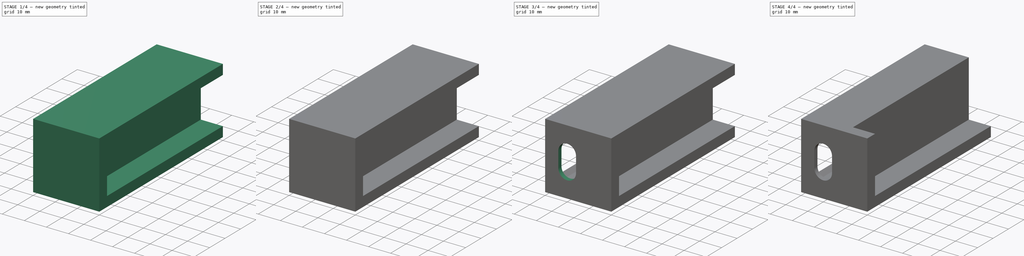
[diagram: build sequence overview — one tinted view per stage of 4, left to right]
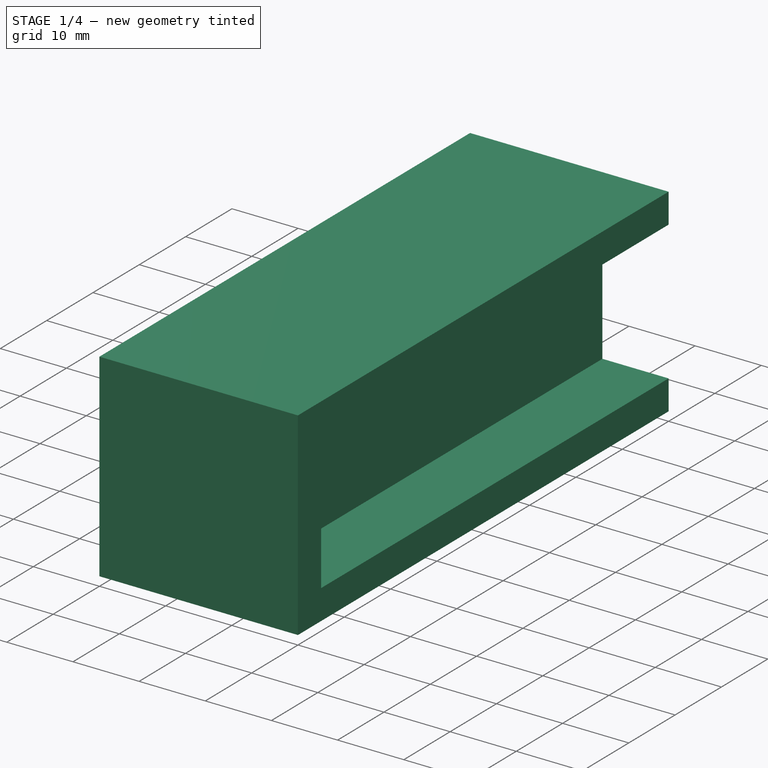
[diagram: stage 1 of 4 — iso view after this stage's code; geometry added in this stage tinted green]
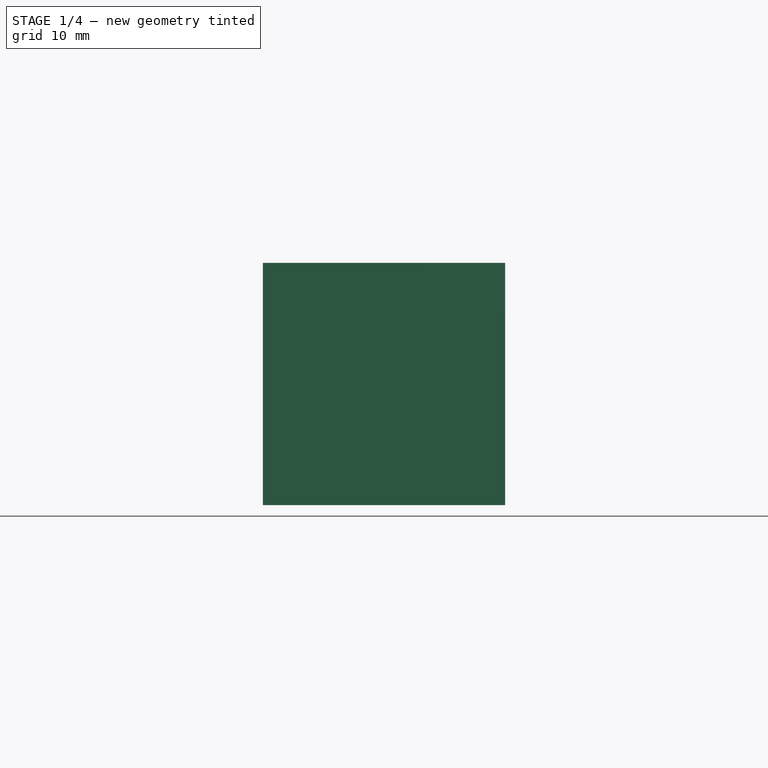
[diagram: stage 1 of 4 — front view after this stage's code; geometry added in this stage tinted green]
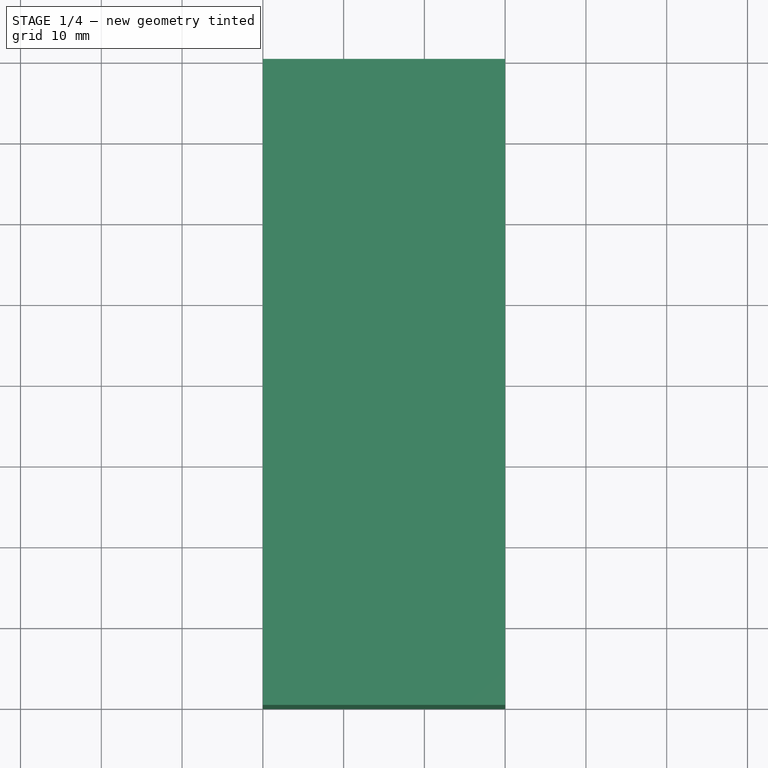
[diagram: stage 1 of 4 — top view after this stage's code; geometry added in this stage tinted green]
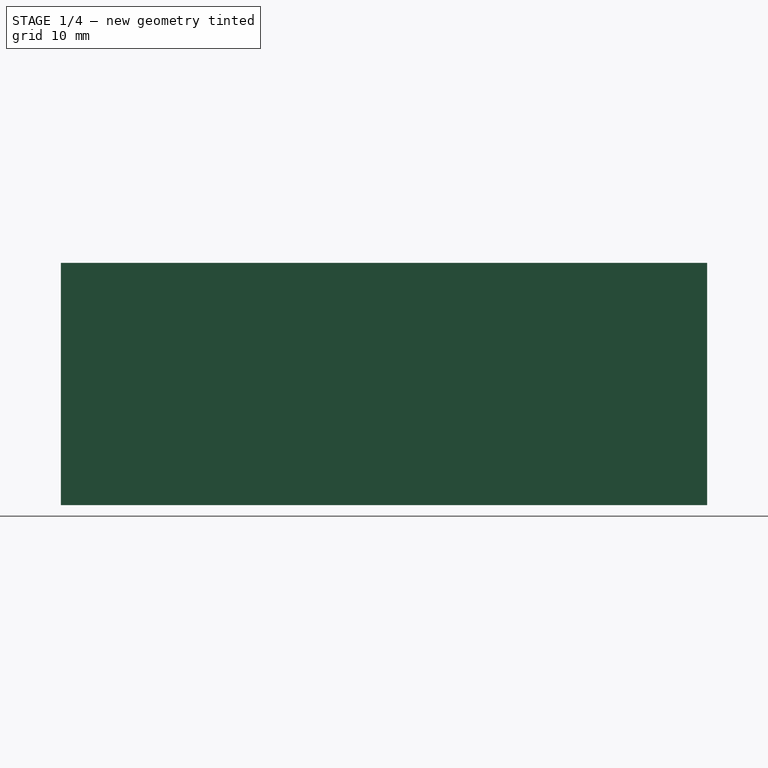
[diagram: stage 1 of 4 — right view after this stage's code; geometry added in this stage tinted green]
FCSTD DOCUMENT  (FreeCAD 0.21R33771 (Git))
Label: Footer2
License: All rights reserved
LicenseURL: http://en.wikipedia.org/wiki/All_rights_reserved
objects: Sketcher::SketchObject×10, PartDesign::Pocket×8, PartDesign::Pad×2, PartDesign::Fillet×2, PartDesign::AdditiveBox×1, PartDesign::Body×1
note: 37 computed .brp shape members not serialized (recipe doc carries the construction recipe); baked Part::Feature solids carry a one-line shape summary decoded from their .brp

FEATURE [PartDesign::AdditiveBox] Box
  AttacherType = Attacher::AttachEngine3D
  Height = 30
  Length = 30
  Width = 80
FEATURE [Sketcher::SketchObject] Sketch
  FullyConstrained = true
  MapMode = 5
  Placement = pos=(30,0,0) rot=(0.57735,0.57735,0.57735;2.0944rad)
  Support = -> [Box]
  sketch-geometry (4):
    g0: LineSegment StartX=80 StartY=4.5 StartZ=0 EndX=5 EndY=4.5 EndZ=0
    g1: LineSegment StartX=5 StartY=4.5 StartZ=0 EndX=5 EndY=25.5 EndZ=0
    g2: LineSegment StartX=5 StartY=25.5 StartZ=0 EndX=80 EndY=25.5 EndZ=0
    g3: LineSegment StartX=80 StartY=25.5 StartZ=0 EndX=80 EndY=4.5 EndZ=0
  constraints (12):
    c: Coincident(g0,g1)
    c: Coincident(g1,g2)
    c: Coincident(g2,g3)
    c: Coincident(g3,g0)
    c: Horizontal(g0)
    c: Horizontal(g2)
    c: Vertical(g1)
    c: Vertical(g3)
    c: DistanceX(g-1,g0) = 5
    c: DistanceY(g1,g1) = 21
    c: DistanceY(g-1,g0) = 4.5
    c: DistanceX(g2,g2) = 75
FEATURE [PartDesign::Pocket] Pocket
  BaseFeature = -> Box
  Direction = (-1,0,0)
  Length = 10
  Length2 = 5
  Profile = -> Sketch
  ReferenceAxis = -> Sketch [N_Axis]
  Type = 0
FEATURE [Sketcher::SketchObject] Sketch001
  FullyConstrained = true
  MapMode = 5
  Placement = pos=(0,0,0) rot=(0.57735,0.57735,0.57735;2.0944rad)
  Support = -> [YZ_Plane]
  sketch-geometry (4):
    g0: LineSegment StartX=78 StartY=26 StartZ=0 EndX=2 EndY=26 EndZ=0
    g1: LineSegment StartX=2 StartY=26 StartZ=0 EndX=2 EndY=4 EndZ=0
    g2: LineSegment StartX=2 StartY=4 StartZ=0 EndX=78 EndY=4 EndZ=0
    g3: LineSegment StartX=78 StartY=4 StartZ=0 EndX=78 EndY=26 EndZ=0
  constraints (12):
    c: Coincident(g0,g1)
    c: Coincident(g1,g2)
    c: Coincident(g2,g3)
    c: Coincident(g3,g0)
    c: Horizontal(g0)
    c: Horizontal(g2)
    c: Vertical(g1)
    c: Vertical(g3)
    c: DistanceX(g0,g0) = 76
    c: DistanceY(g1,g1) = 22
    c: DistanceX(g-1,g1) = 2
    c: DistanceY(g-1,g1) = 4
FEATURE [PartDesign::Pocket] Pocket001
  BaseFeature = -> Pocket
  Direction = (-1,2e-16,-3e-16)
  Length = 18
  Length2 = 5
  Profile = -> Sketch001
  ReferenceAxis = -> Sketch001 [N_Axis]
  Reversed = true
  Type = 0
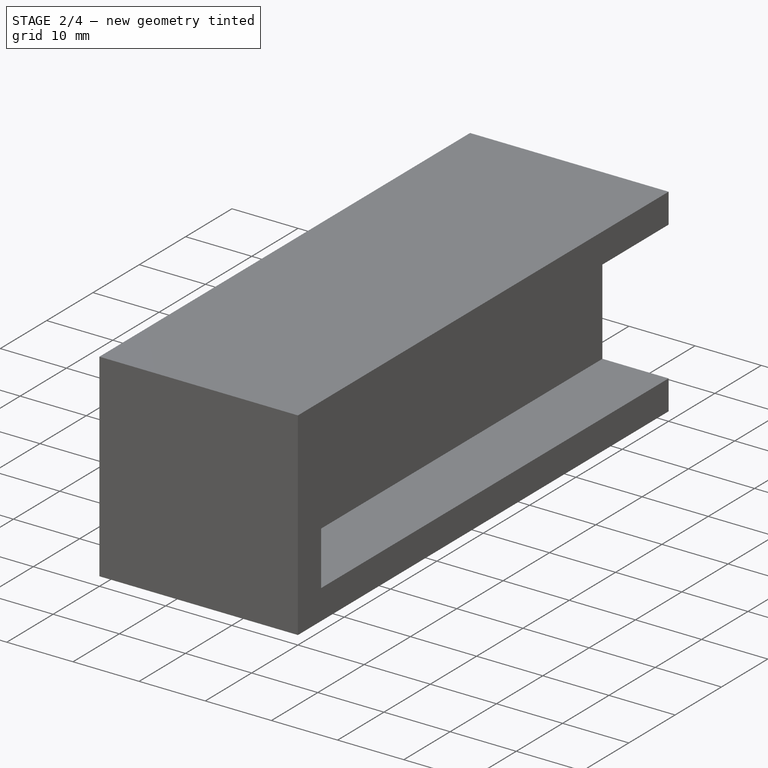
[diagram: stage 2 of 4 — iso view after this stage's code; geometry added in this stage tinted green]
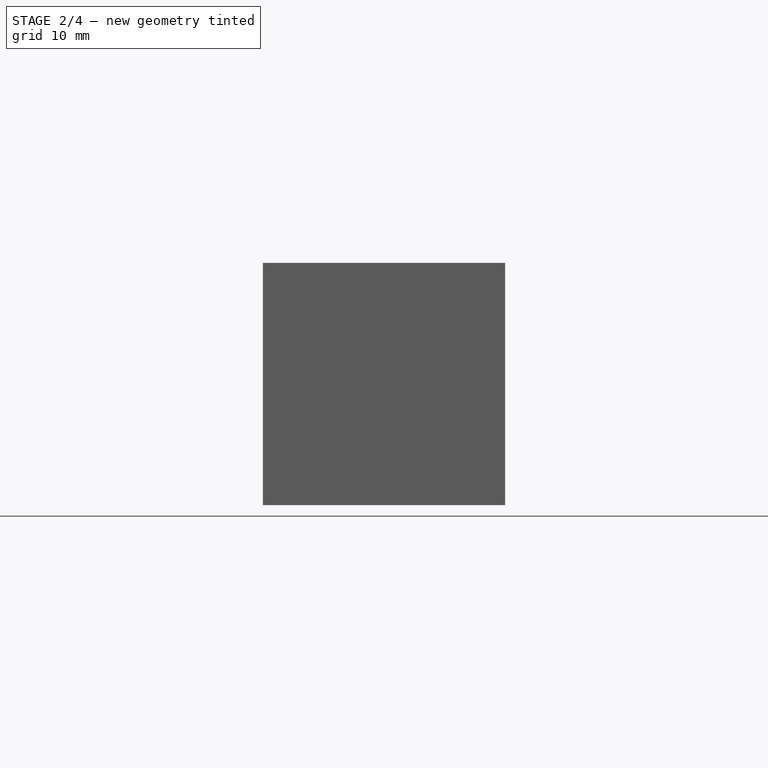
[diagram: stage 2 of 4 — front view after this stage's code; geometry added in this stage tinted green]
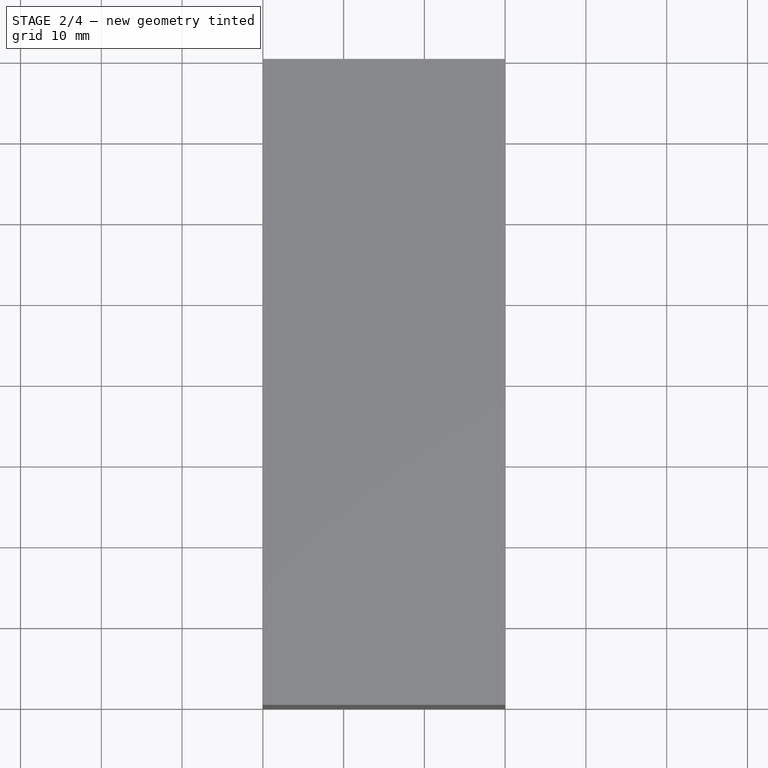
[diagram: stage 2 of 4 — top view after this stage's code; geometry added in this stage tinted green]
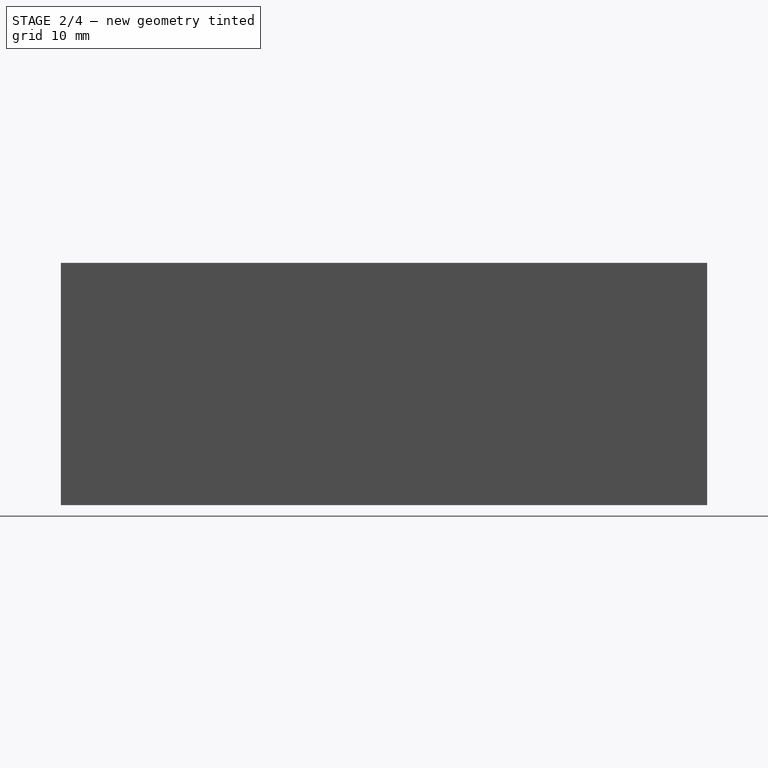
[diagram: stage 2 of 4 — right view after this stage's code; geometry added in this stage tinted green]
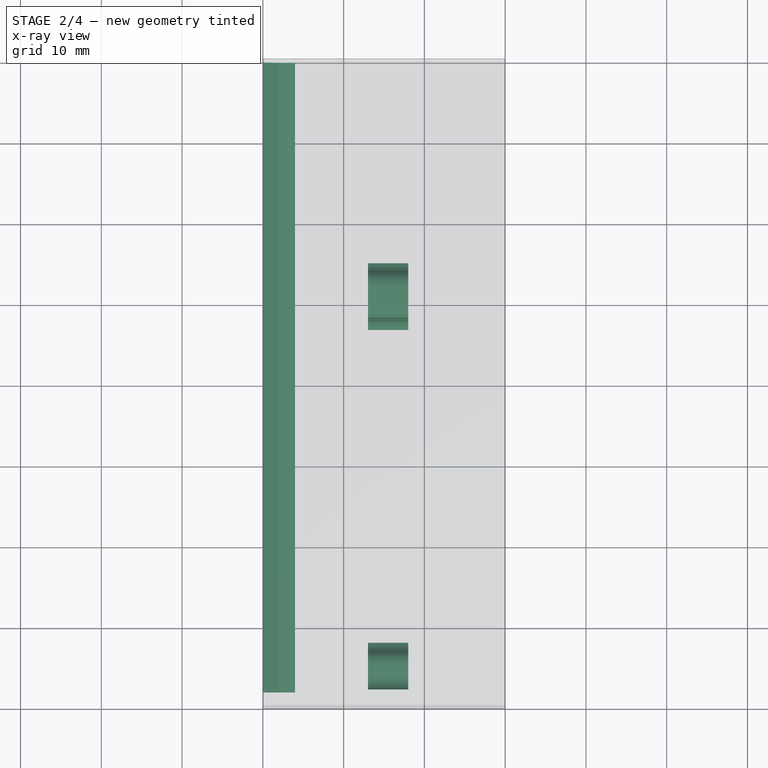
[diagram: stage 2 of 4 — x-ray composite at the top view; earlier geometry ghosted, this stage's added geometry solid]
FEATURE [Sketcher::SketchObject] Sketch002
  FullyConstrained = true
  MapMode = 5
  Placement = pos=(0,80,0) rot=(0,0.707107,0.707107;3.14159rad)
  Support = -> [Pocket001]
  sketch-geometry (8):
    g0: LineSegment StartX=-4 StartY=28 StartZ=0 EndX=-2 EndY=28 EndZ=0
    g1: LineSegment StartX=-2 StartY=28 StartZ=0 EndX=-4e-16 EndY=26 EndZ=0
    g2: LineSegment StartX=-4e-16 StartY=26 StartZ=0 EndX=5 EndY=26 EndZ=0
    g3: LineSegment StartX=5 StartY=26 StartZ=0 EndX=5 EndY=4 EndZ=0
    g4: LineSegment StartX=5 StartY=4 StartZ=0 EndX=0 EndY=4 EndZ=0
    g5: LineSegment StartX=0 StartY=4 StartZ=0 EndX=-2 EndY=2 EndZ=0
    g6: LineSegment StartX=-2 StartY=2 StartZ=0 EndX=-4 EndY=2 EndZ=0
    g7: LineSegment StartX=-4 StartY=2 StartZ=0 EndX=-4 EndY=28 EndZ=0
  constraints (25):
    c: Coincident(g0,g1)
    c: Coincident(g1,g2)
    c: Horizontal(g2)
    c: Coincident(g2,g3)
    c: Vertical(g3)
    c: Coincident(g3,g4)
    c: Horizontal(g4)
    c: Coincident(g4,g5)
    c: Coincident(g5,g6)
    c: Coincident(g6,g7)
    c: Vertical(g7)
    c: Equal(g2,g4)
    c: Equal(g1,g5)
    c: Equal(g0,g6)
    c: Horizontal(g0)
    c: Horizontal(g6)
    c: DistanceY(g3,g3) = 22
    c: DistanceY(g1,g1) = 2
    c: DistanceX(g6,g6) = 2
    c: DistanceX(g5,g-1) = 2
    c: DistanceY(g-1,g5) = 2
    c: DistanceX(g4,g4) = 5
    c: DistanceY(g7,g7) = 26
    c: DistanceX(g0,g1) = 2
    c: DistanceX(g5,g4) = 2
FEATURE [PartDesign::Pocket] Pocket002
  BaseFeature = -> Pocket001
  Direction = (0,-1,2e-16)
  Length = 78
  Length2 = 5
  Profile = -> Sketch002
  ReferenceAxis = -> Sketch002 [N_Axis]
  Type = 0
FEATURE [Sketcher::SketchObject] Sketch003
  AttachmentOffset = pos=(0,0,18) rot=(0,0,1;0rad)
  FullyConstrained = true
  MapMode = 5
  Placement = pos=(18,-4e-15,4e-15) rot=(0.57735,0.57735,0.57735;2.0944rad)
  Support = -> [YZ_Plane]
  expr: Constraints[45] = 2 mm + 2 mm - 6 mm / 2
  sketch-geometry (16):
    g0: LineSegment StartX=54 StartY=26 StartZ=0 EndX=48 EndY=26 EndZ=0
    g1: LineSegment StartX=48 StartY=26 StartZ=0 EndX=48 EndY=18 EndZ=0
    g2: LineSegment StartX=48 StartY=18 StartZ=0 EndX=54 EndY=18 EndZ=0
    g3: LineSegment StartX=54 StartY=18 StartZ=0 EndX=54 EndY=26 EndZ=0
    g4: LineSegment StartX=54 StartY=12 StartZ=0 EndX=48 EndY=12 EndZ=0
    g5: LineSegment StartX=48 StartY=12 StartZ=0 EndX=48 EndY=4 EndZ=0
    g6: LineSegment StartX=48 StartY=4 StartZ=0 EndX=54 EndY=4 EndZ=0
    g7: LineSegment StartX=54 StartY=4 StartZ=0 EndX=54 EndY=12 EndZ=0
    g8: LineSegment StartX=6.61134 StartY=26 StartZ=0 EndX=0.611342 EndY=26 EndZ=0
    g9: LineSegment StartX=0.611342 StartY=26 StartZ=0 EndX=0.611342 EndY=18 EndZ=0
    g10: LineSegment StartX=0.611342 StartY=18 StartZ=0 EndX=6.61134 EndY=18 EndZ=0
    g11: LineSegment StartX=6.61134 StartY=18 StartZ=0 EndX=6.61134 EndY=26 EndZ=0
    g12: LineSegment StartX=7 StartY=12 StartZ=0 EndX=1 EndY=12 EndZ=0
    g13: LineSegment StartX=1 StartY=12 StartZ=0 EndX=1 EndY=4 EndZ=0
    g14: LineSegment StartX=1 StartY=4 StartZ=0 EndX=7 EndY=4 EndZ=0
    g15: LineSegment StartX=7 StartY=4 StartZ=0 EndX=7 EndY=12 EndZ=0
  constraints (48):
    c: Coincident(g0,g1)
    c: Coincident(g1,g2)
    c: Coincident(g2,g3)
    c: Coincident(g3,g0)
    c: Horizontal(g0)
    c: Horizontal(g2)
    c: Vertical(g1)
    c: Vertical(g3)
    c: Coincident(g4,g5)
    c: Coincident(g5,g6)
    c: Coincident(g6,g7)
    c: Coincident(g7,g4)
    c: Horizontal(g4)
    c: Horizontal(g6)
    c: Vertical(g5)
    c: Vertical(g7)
    c: Coincident(g8,g9)
    c: Coincident(g9,g10)
    c: Coincident(g10,g11)
    c: Coincident(g11,g8)
    c: Horizontal(g8)
    c: Horizontal(g10)
    c: Vertical(g9)
    c: Vertical(g11)
    c: Coincident(g12,g13)
    c: Coincident(g13,g14)
    c: Coincident(g14,g15)
    c: Coincident(g15,g12)
    c: Horizontal(g12)
    c: Horizontal(g14)
    c: Vertical(g13)
    c: Vertical(g15)
    c: Equal(g1,g11)
    c: Equal(g11,g15)
    c: Equal(g15,g5)
    c: Equal(g4,g2)
    c: Equal(g2,g10)
    c: Equal(g10,g12)
    c: DistanceY(g0,g8) = 0
    c: DistanceY(g14,g5) = 0
    c: DistanceX(g4,g4) = 6
    c: DistanceY(g9,g9) = 8
    c: DistanceY(g12,g9) = 6
    c: DistanceY(g-1,g13) = 4
    c: DistanceX(g4,g2) = 0
    c: DistanceX(g-1,g13) = 1
    c: DistanceX(g12) = 7
    c: DistanceX(g12,g4) = 41
FEATURE [PartDesign::Pad] Pad
  BaseFeature = -> Pocket002
  Direction = (1,-2e-16,3e-16)
  Length = 5
  Length2 = 10
  Profile = -> Sketch003
  ReferenceAxis = -> Sketch003 [N_Axis]
  Reversed = true
  Type = 0
FEATURE [PartDesign::Fillet] Fillet
  Base = -> Pad [Edge56,Edge54,Edge79,Edge89,Edge101,Edge97,Edge72,Edge70,Edge96,Edge92,Edge62,Edge64,Edge74,Edge60]
  BaseFeature = -> Pad
  Radius = 2
  SupportTransform = false
  UseAllEdges = false
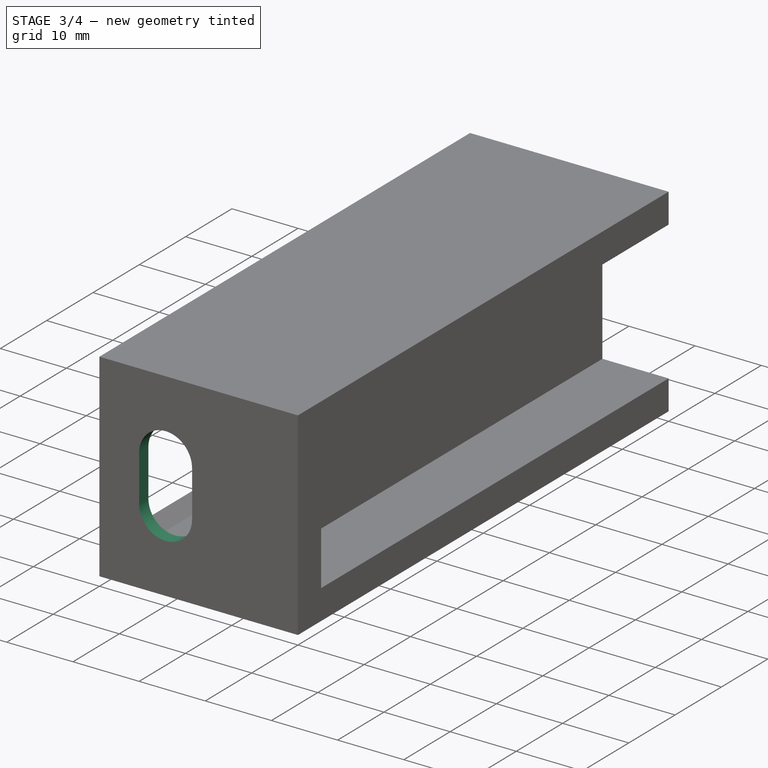
[diagram: stage 3 of 4 — iso view after this stage's code; geometry added in this stage tinted green]
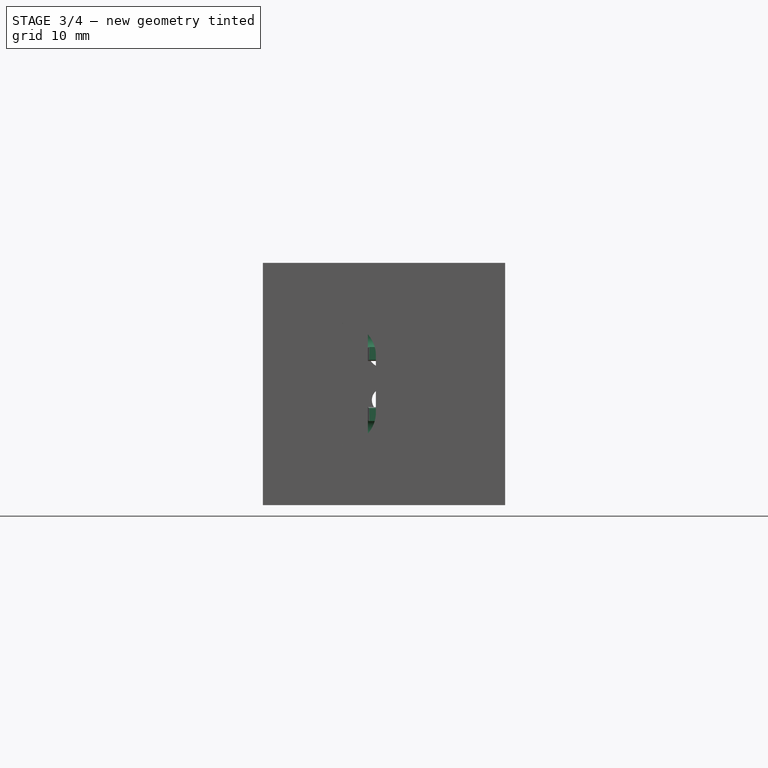
[diagram: stage 3 of 4 — front view after this stage's code; geometry added in this stage tinted green]
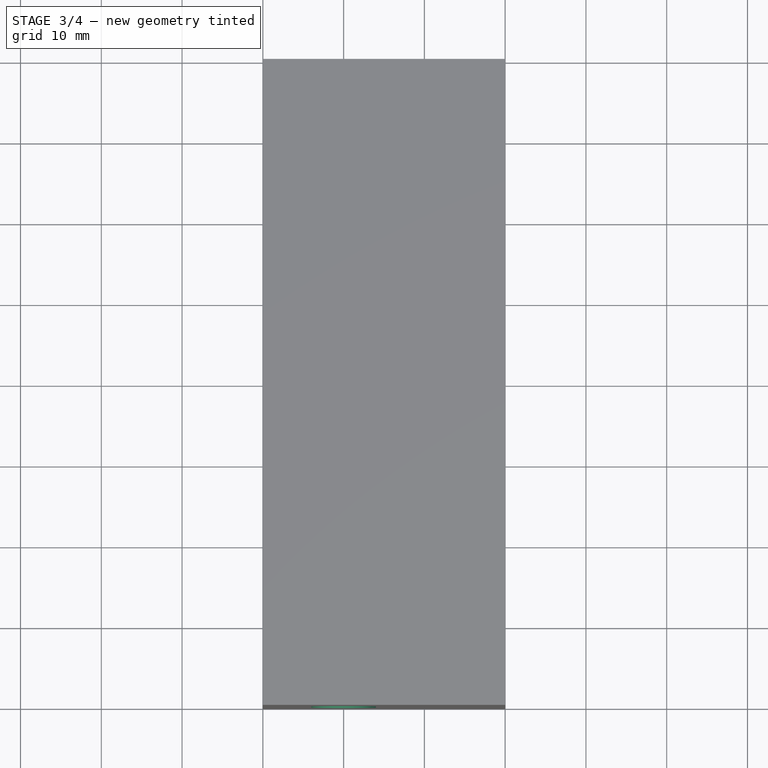
[diagram: stage 3 of 4 — top view after this stage's code; geometry added in this stage tinted green]
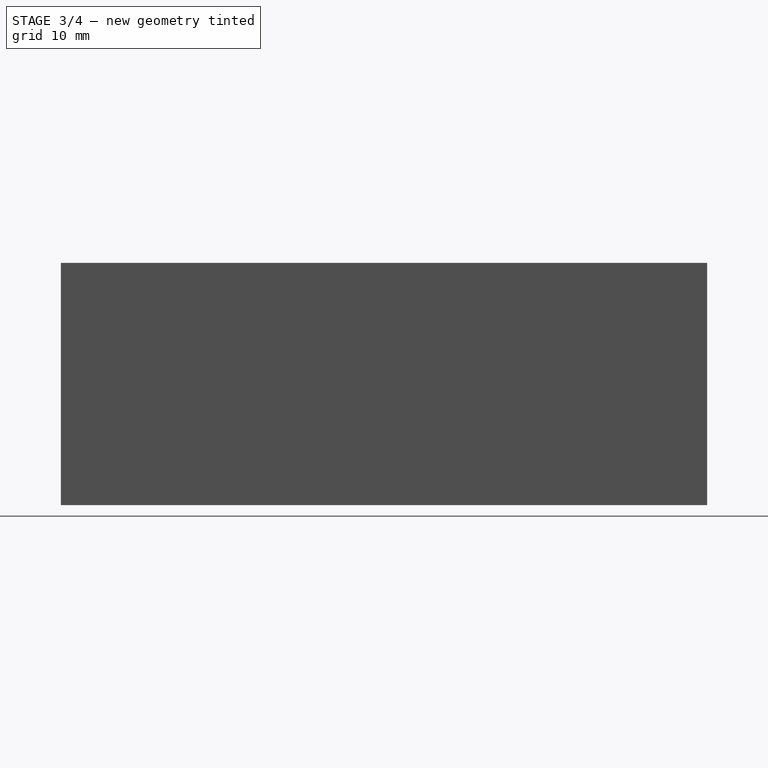
[diagram: stage 3 of 4 — right view after this stage's code; geometry added in this stage tinted green]
FEATURE [Sketcher::SketchObject] Sketch004
  FullyConstrained = true
  MapMode = 5
  Placement = pos=(0,0,0) rot=(1,0,0;1.5708rad)
  Support = -> [Fillet]
  sketch-geometry (4):
    g0: ArcOfCircle CenterX=10 CenterY=18.5 CenterZ=0 NormalX=0 NormalY=0 NormalZ=1 AngleXU=0 Radius=4 StartAngle=0 EndAngle=3.14159
    g1: ArcOfCircle CenterX=10 CenterY=11.5 CenterZ=0 NormalX=0 NormalY=0 NormalZ=1 AngleXU=0 Radius=4 StartAngle=3.14159 EndAngle=6.28319
    g2: LineSegment StartX=6 StartY=18.5 StartZ=0 EndX=6 EndY=11.5 EndZ=0
    g3: LineSegment StartX=14 StartY=11.5 StartZ=0 EndX=14 EndY=18.5 EndZ=0
  constraints (10):
    c: Tangent(g0,g2) = -1.5708
    c: Tangent(g2,g1) = -1.5708
    c: Tangent(g1,g3) = -1.5708
    c: Tangent(g3,g0) = -1.5708
    c: Equal(g0,g1)
    c: Vertical(g2)
    c: DistanceY(g1,g0) = 7
    c: DistanceX(g0,g0) = 8
    c: DistanceX(g-1,g1) = 6
    c: DistanceY(g-1,g1) = 11.5
FEATURE [PartDesign::Pocket] Pocket003
  BaseFeature = -> Fillet
  Direction = (0,1,-2e-16)
  Length = 3
  Length2 = 5
  Profile = -> Sketch004
  ReferenceAxis = -> Sketch004 [N_Axis]
  Type = 0
FEATURE [PartDesign::Fillet] Fillet001
  Base = -> Pocket003 [Edge48,Edge6,Edge16,Edge67]
  BaseFeature = -> Pocket003
  Radius = 0.2
  SupportTransform = false
  UseAllEdges = false
FEATURE [Sketcher::SketchObject] Sketch005
  FullyConstrained = true
  MapMode = 5
  Placement = pos=(0,0,0) rot=(0.57735,0.57735,0.57735;2.0944rad)
  Support = -> [YZ_Plane]
  sketch-geometry (4):
    g0: Circle CenterX=4 CenterY=9.3 CenterZ=0 NormalX=0 NormalY=0 NormalZ=1 AngleXU=0 Radius=1.5
    g1: Circle CenterX=4 CenterY=20.7 CenterZ=0 NormalX=0 NormalY=0 NormalZ=1 AngleXU=0 Radius=1.5
    g2: Circle CenterX=51 CenterY=9.3 CenterZ=0 NormalX=0 NormalY=0 NormalZ=1 AngleXU=0 Radius=1.5
    g3: Circle CenterX=51 CenterY=20.7 CenterZ=0 NormalX=0 NormalY=0 NormalZ=1 AngleXU=0 Radius=1.5
  constraints (12):
    c: DistanceX(g2,g3) = 0
    c: DistanceX(g1,g0) = 0
    c: DistanceY(g2,g0) = 0
    c: DistanceY(g3,g1) = 0
    c: DistanceX(g0,g2) = 47
    c: DistanceX(g-1,g0) = 4
    c: DistanceY(g-1,g0) = 9.3
    c: DistanceY(g2,g3) = 11.4
    c: Equal(g3,g1)
    c: Equal(g1,g0)
    c: Equal(g0,g2)
    c: Diameter(g3) = 3
FEATURE [PartDesign::Pocket] Pocket004
  BaseFeature = -> Fillet001
  Direction = (-1,2e-16,-3e-16)
  Length = 19
  Length2 = 5
  Profile = -> Sketch005
  ReferenceAxis = -> Sketch005 [N_Axis]
  Reversed = true
  Type = 0
FEATURE [Sketcher::SketchObject] Sketch006
  FullyConstrained = true
  MapMode = 5
  Placement = pos=(0,80,0) rot=(0,0.707107,0.707107;3.14159rad)
  Support = -> [Pocket004]
  sketch-geometry (6):
    g0: Circle CenterX=-15 CenterY=13 CenterZ=0 NormalX=0 NormalY=0 NormalZ=1 AngleXU=0 Radius=1.5
    g1: Circle CenterX=-15 CenterY=7 CenterZ=0 NormalX=0 NormalY=0 NormalZ=1 AngleXU=0 Radius=2.5
    g2: ArcOfCircle CenterX=-15 CenterY=23 CenterZ=0 NormalX=0 NormalY=0 NormalZ=1 AngleXU=0 Radius=2 StartAngle=6.3e-15 EndAngle=3.14159
    g3: ArcOfCircle CenterX=-15 CenterY=19 CenterZ=0 NormalX=0 NormalY=0 NormalZ=1 AngleXU=0 Radius=2 StartAngle=3.14159 EndAngle=6.28319
    g4: LineSegment StartX=-17 StartY=23 StartZ=0 EndX=-17 EndY=19 EndZ=0
    g5: LineSegment StartX=-13 StartY=19 StartZ=0 EndX=-13 EndY=23 EndZ=0
  constraints (16):
    c: DistanceX(g1,g0) = 0
    c: Diameter(g0) = 3
    c: Diameter(g1) = 5
    c: DistanceY(g-1,g1) = 7
    c: DistanceY(g1,g0) = 6
    c: DistanceX(g1,g-1) = 15
    c: Tangent(g2,g4) = -1.5708
    c: Tangent(g4,g3) = -1.5708
    c: Tangent(g3,g5) = -1.5708
    c: Tangent(g5,g2) = -1.5708
    c: Equal(g2,g3)
    c: Vertical(g4)
    c: DistanceX(g2,g2) = 4
    c: DistanceX(g3,g0) = 0
    c: DistanceY(g3,g2) = 4
    c: DistanceY(g0,g3) = 6
FEATURE [PartDesign::Pocket] Pocket005
  BaseFeature = -> Pocket004
  Direction = (0,-1,2e-16)
  Length = 5
  Length2 = 5
  Profile = -> Sketch006
  ReferenceAxis = -> Sketch006 [N_Axis]
  Type = 0
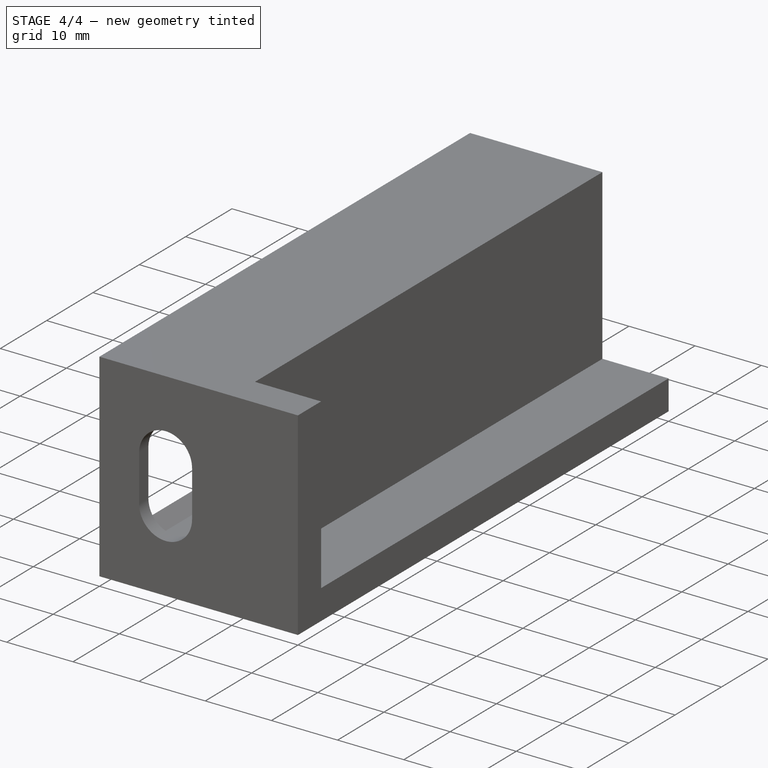
[diagram: stage 4 of 4 — iso view after this stage's code; geometry added in this stage tinted green]
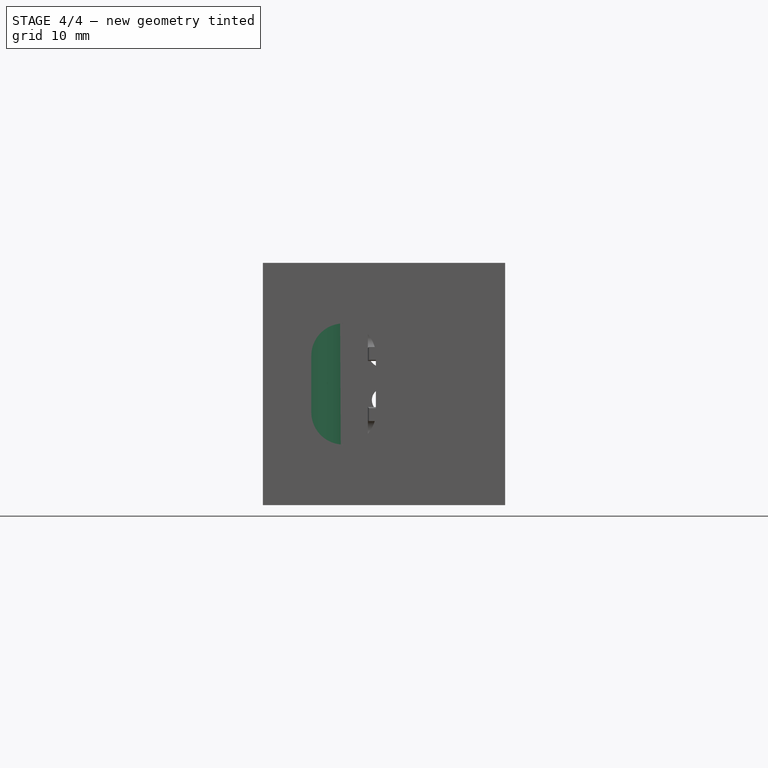
[diagram: stage 4 of 4 — front view after this stage's code; geometry added in this stage tinted green]
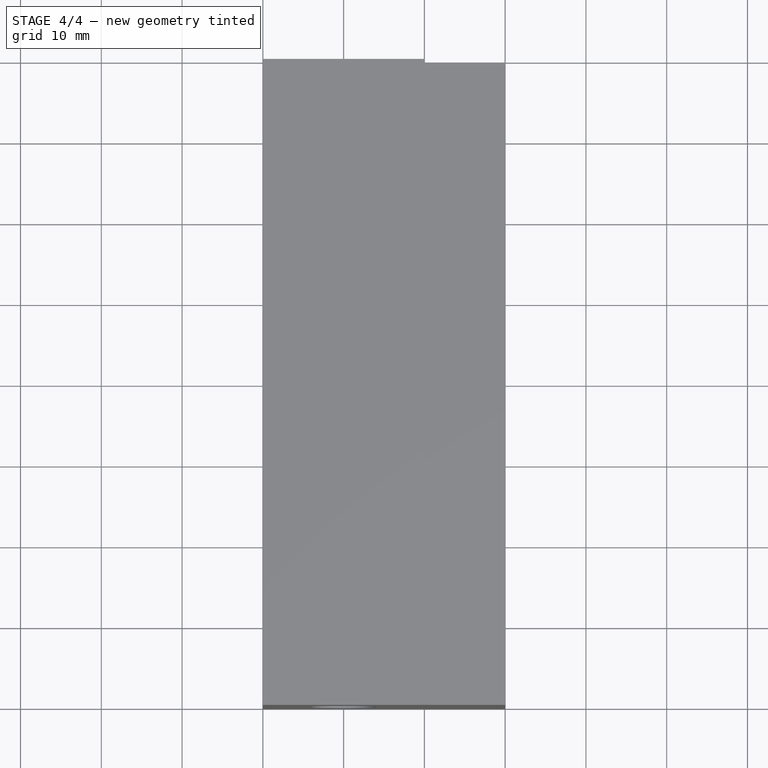
[diagram: stage 4 of 4 — top view after this stage's code; geometry added in this stage tinted green]
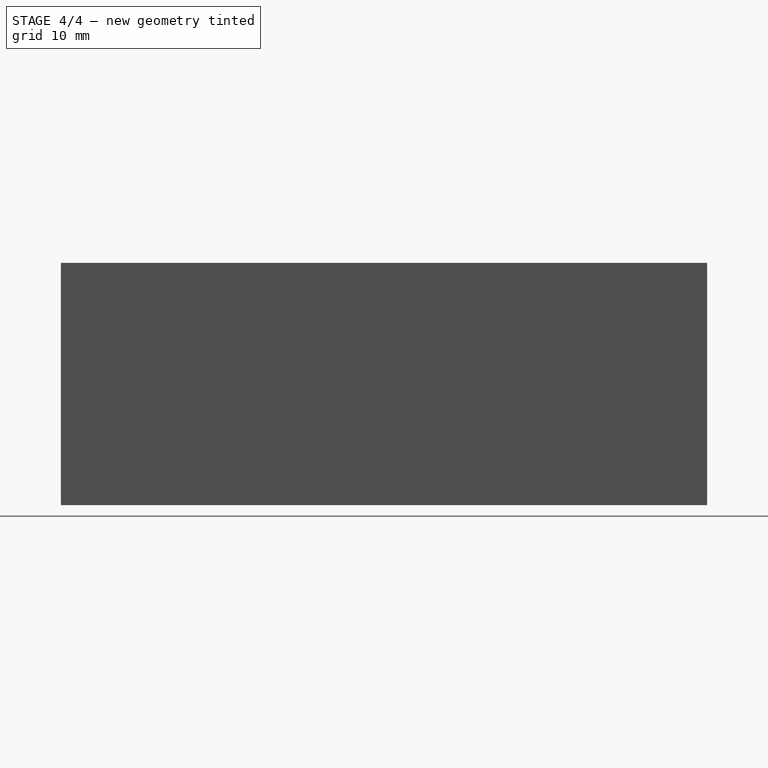
[diagram: stage 4 of 4 — right view after this stage's code; geometry added in this stage tinted green]
FEATURE [Sketcher::SketchObject] Sketch007
  AttachmentOffset = pos=(0,0,15) rot=(0,0,1;0rad)
  FullyConstrained = true
  MapMode = 5
  Placement = pos=(0,0,15) rot=(0,0,1;0rad)
  Support = -> [XY_Plane]
  sketch-geometry (3):
    g0: LineSegment StartX=4 StartY=80 StartZ=0 EndX=10 EndY=80 EndZ=0
    g1: LineSegment StartX=4 StartY=80 StartZ=0 EndX=4 EndY=74 EndZ=0
    g2: ArcOfCircle CenterX=4 CenterY=80 CenterZ=0 NormalX=0 NormalY=0 NormalZ=1 AngleXU=0 Radius=6 StartAngle=4.71239 EndAngle=6.28319
  constraints (10):
    c: Horizontal(g0)
    c: Coincident(g0,g1)
    c: Vertical(g1)
    c: Coincident(g2,g0)
    c: Coincident(g2,g0)
    c: DistanceY(g-1,g0) = 80
    c: DistanceX(g-1,g2) = 4
    c: DistanceX(g2,g1) = 0
    c: Equal(g1,g0)
    c: DistanceX(g0,g0) = 6
FEATURE [PartDesign::Pad] Pad001
  BaseFeature = -> Pocket005
  Direction = (0,0,1)
  Length = 26
  Length2 = 10
  Midplane = true
  Profile = -> Sketch007
  ReferenceAxis = -> Sketch007 [N_Axis]
  Type = 0
FEATURE [Sketcher::SketchObject] Sketch008
  FullyConstrained = true
  MapMode = 5
  Placement = pos=(0,0,0) rot=(0.57735,0.57735,0.57735;2.0944rad)
  Support = -> [YZ_Plane]
  sketch-geometry (1):
    g0: Circle CenterX=77 CenterY=15 CenterZ=0 NormalX=0 NormalY=0 NormalZ=1 AngleXU=0 Radius=1.5
  constraints (3):
    c: Diameter(g0) = 3
    c: DistanceX(g-1,g0) = 77
    c: DistanceY(g-1,g0) = 15
FEATURE [PartDesign::Pocket] Pocket006
  BaseFeature = -> Pad001
  Direction = (-1,2e-16,-3e-16)
  Length = 8
  Length2 = 5
  Profile = -> Sketch008
  ReferenceAxis = -> Sketch008 [N_Axis]
  Refine = true
  Reversed = true
  Type = 0
FEATURE [Sketcher::SketchObject] Sketch009
  FullyConstrained = true
  MapMode = 5
  Placement = pos=(30,0,0) rot=(0.57735,0.57735,0.57735;2.0944rad)
  Support = -> [Pocket006]
  sketch-geometry (4):
    g0: LineSegment StartX=5 StartY=45 StartZ=0 EndX=80 EndY=45 EndZ=0
    g1: LineSegment StartX=80 StartY=45 StartZ=0 EndX=80 EndY=20 EndZ=0
    g2: LineSegment StartX=80 StartY=20 StartZ=0 EndX=5 EndY=20 EndZ=0
    g3: LineSegment StartX=5 StartY=20 StartZ=0 EndX=5 EndY=45 EndZ=0
  constraints (12):
    c: Coincident(g0,g1)
    c: Coincident(g1,g2)
    c: Coincident(g2,g3)
    c: Coincident(g3,g0)
    c: Horizontal(g0)
    c: Horizontal(g2)
    c: Vertical(g1)
    c: Vertical(g3)
    c: DistanceX(g-1,g2) = 5
    c: DistanceY(g3,g3) = 25
    c: DistanceX(g0,g0) = 75
    c: DistanceY(g-1,g2) = 20
FEATURE [PartDesign::Pocket] Pocket007
  BaseFeature = -> Pocket006
  Direction = (-1,0,0)
  Length = 10
  Length2 = 5
  Profile = -> Sketch009
  ReferenceAxis = -> Sketch009 [N_Axis]
  Refine = true
  Type = 0
FEATURE [PartDesign::Body] Body  label="Körper"
  Group = -> [Box,Sketch,Pocket,Sketch001,Pocket001,Sketch002,Pocket002,Sketch003,Pad,Fillet,Sketch004,Pocket003,Fillet001,Sketch005,Pocket004,Sketch006,Pocket005,Sketch007,Pad001,Sketch008,Pocket006,Sketch009,Pocket007]
  Origin = -> Origin
  Tip = -> Pocket007
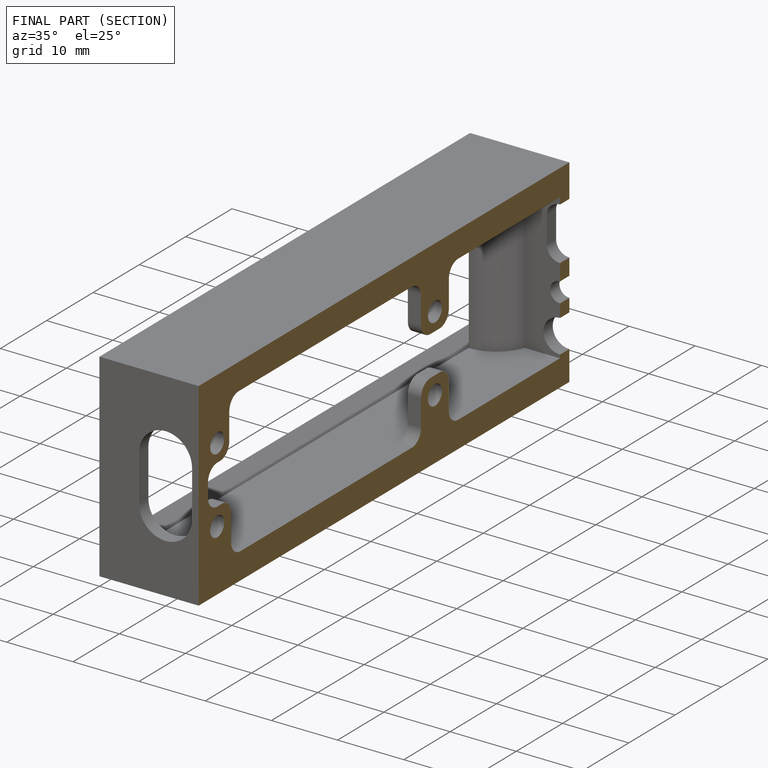
[diagram: finished part — half-section view (interior)]
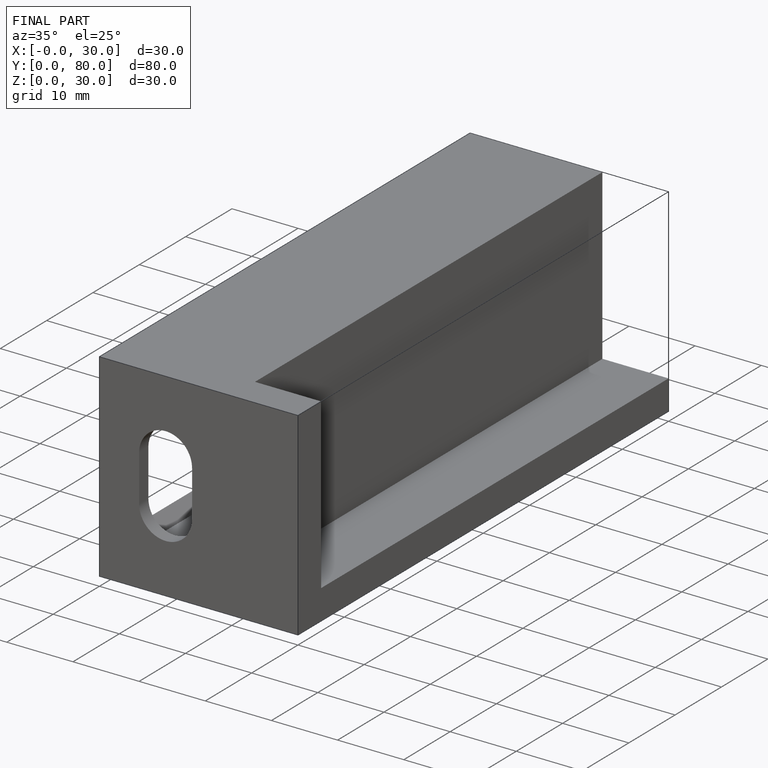
[diagram: finished part — iso view with bounding-box wireframe]
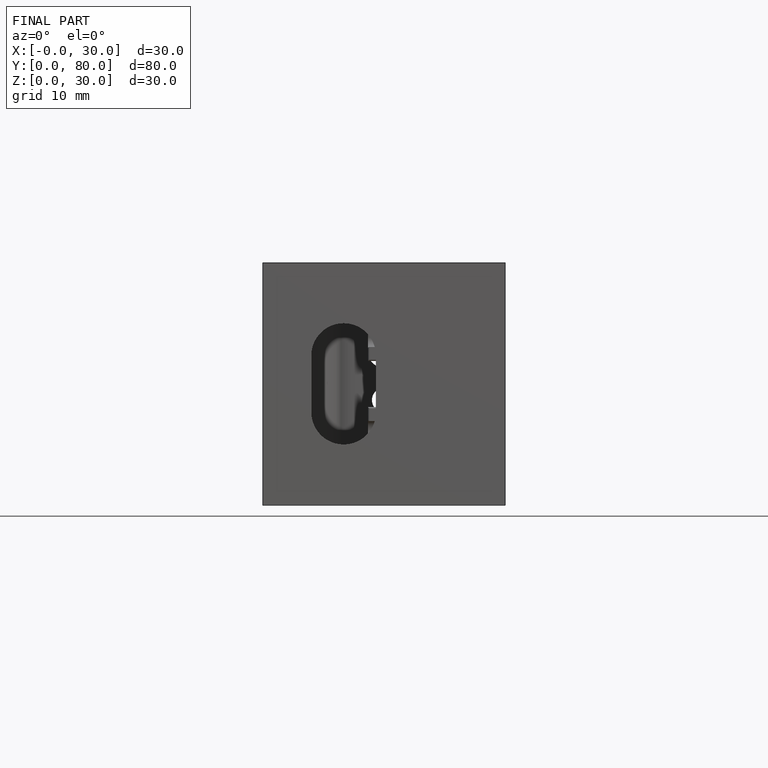
[diagram: finished part — front view with bounding-box wireframe]
